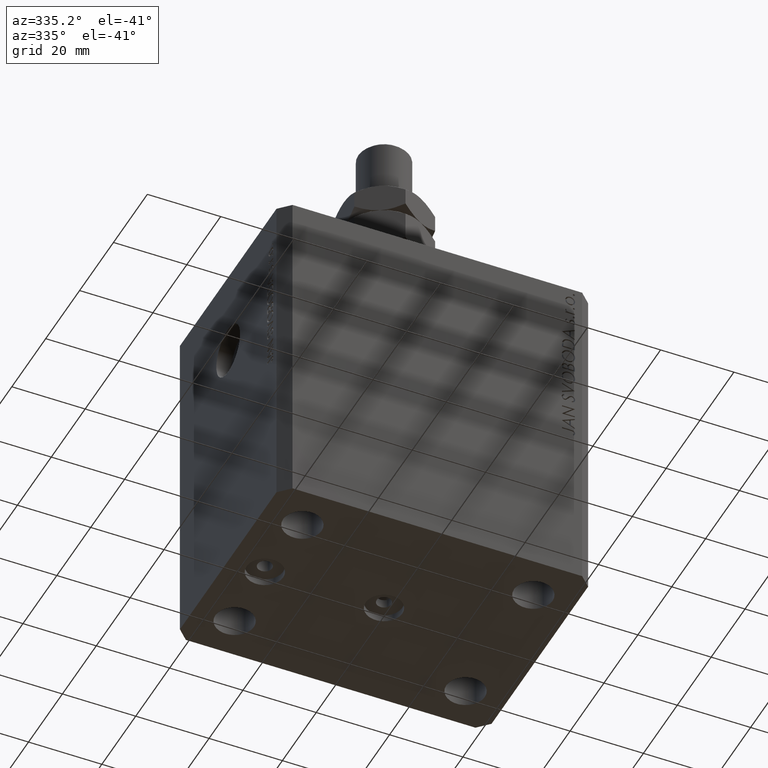
[diagram: clean part render]
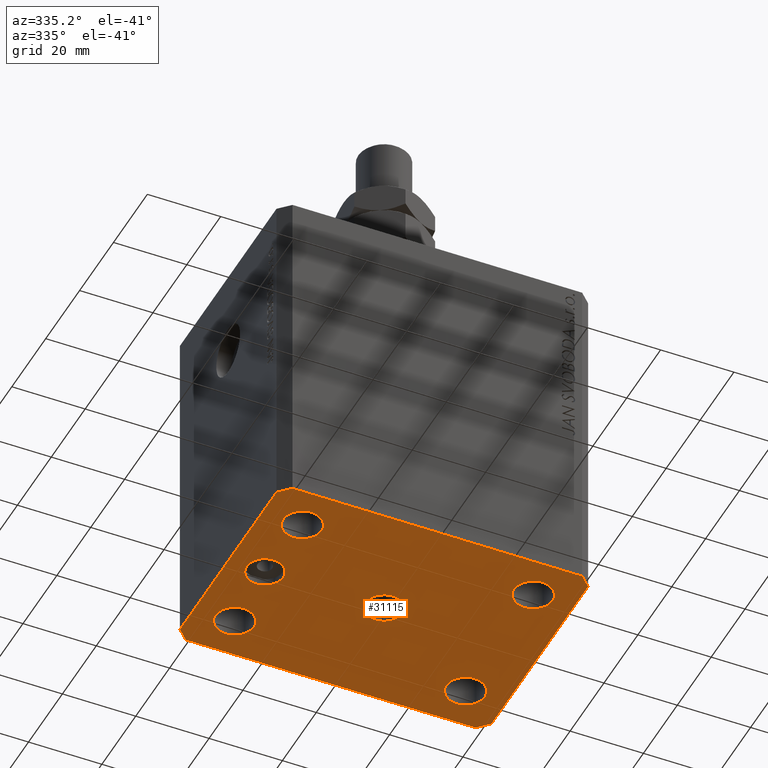
[diagram: same view with one face highlighted and labeled with its STEP entity id]
A machine part, auxiliary view. The second image highlights one B-rep face of the part: STEP entity #31115.
In plain terms, the highlighted planar face has unit normal (0, 0, 1).
Its self-contained STEP definition (entity closure, byte-faithful):
#225 = CARTESIAN_POINT ( 'NONE',  ( -42.50000000000000000, -28.50000000000000000, -93.00000000000000000 ) ) ;
#284 = CARTESIAN_POINT ( 'NONE',  ( 39.50000000000056843, 31.49999999999999289, -93.00000000000000000 ) ) ;
#984 = CARTESIAN_POINT ( 'NONE',  ( -32.50000000000000000, 0.000000000000000000, -93.00000000000000000 ) ) ;
#1146 = CARTESIAN_POINT ( 'NONE',  ( 31.49999999999999289, -20.00000000000000355, -93.00000000000000000 ) ) ;
#1160 = DIRECTION ( 'NONE',  ( 0.7071067811865471286, -0.7071067811865479058, 0.000000000000000000 ) ) ;
#1168 = CARTESIAN_POINT ( 'NONE',  ( -31.50000000000000000, 19.99999999999999645, -93.00000000000000000 ) ) ;
#1180 = DIRECTION ( 'NONE',  ( 0.000000000000000000, 0.000000000000000000, -1.000000000000000000 ) ) ;
#1465 = LINE ( 'NONE', #15693, #7337 ) ;
#1476 = EDGE_CURVE ( 'NONE', #35336, #13706, #45570, .T. ) ;
#1544 = AXIS2_PLACEMENT_3D ( 'NONE', #39375, #10981, #28447 ) ;
#1682 = DIRECTION ( 'NONE',  ( -0.000000000000000000, -0.000000000000000000, -1.000000000000000000 ) ) ;
#1774 = DIRECTION ( 'NONE',  ( -1.000000000000000000, 0.000000000000000000, 0.000000000000000000 ) ) ;
#2080 = AXIS2_PLACEMENT_3D ( 'NONE', #23643, #15994, #29956 ) ;
#2201 = VECTOR ( 'NONE', #1160, 1000.000000000000000 ) ;
#2460 = CIRCLE ( 'NONE', #23290, 5.250000000000000888 ) ;
#2848 = ORIENTED_EDGE ( 'NONE', *, *, #38782, .F. ) ;
#3006 = CARTESIAN_POINT ( 'NONE',  ( -5.000000000000000000, 0.000000000000000000, -93.00000000000000000 ) ) ;
#3090 = EDGE_LOOP ( 'NONE', ( #37847, #38159 ) ) ;
#3136 = EDGE_CURVE ( 'NONE', #26757, #42564, #32268, .T. ) ;
#3152 = ORIENTED_EDGE ( 'NONE', *, *, #20306, .F. ) ;
#3343 = DIRECTION ( 'NONE',  ( 0.000000000000000000, 0.000000000000000000, -1.000000000000000000 ) ) ;
#4350 = CARTESIAN_POINT ( 'NONE',  ( -39.50000000000000711, -31.50000000000000000, -93.00000000000000000 ) ) ;
#4352 = LINE ( 'NONE', #18561, #35210 ) ;
#4598 = LINE ( 'NONE', #19043, #41782 ) ;
#4907 = CARTESIAN_POINT ( 'NONE',  ( -39.50000000000000711, 31.50000000000000000, -93.00000000000000000 ) ) ;
#4919 = VERTEX_POINT ( 'NONE', #41088 ) ;
#4956 = CARTESIAN_POINT ( 'NONE',  ( 39.50000000000000711, -31.50000000000000000, -93.00000000000000000 ) ) ;
#5427 = DIRECTION ( 'NONE',  ( 0.000000000000000000, -1.000000000000000000, 0.000000000000000000 ) ) ;
#5458 = VERTEX_POINT ( 'NONE', #24422 ) ;
#5685 = EDGE_LOOP ( 'NONE', ( #42270, #44190 ) ) ;
#5707 = CIRCLE ( 'NONE', #7204, 5.249999999999997335 ) ;
#6748 = LINE ( 'NONE', #31897, #39235 ) ;
#6817 = CIRCLE ( 'NONE', #16510, 4.999999999999997335 ) ;
#7204 = AXIS2_PLACEMENT_3D ( 'NONE', #1146, #29338, #36998 ) ;
#7276 = VECTOR ( 'NONE', #19114, 1000.000000000000000 ) ;
#7337 = VECTOR ( 'NONE', #5427, 1000.000000000000000 ) ;
#7465 = EDGE_CURVE ( 'NONE', #13706, #35336, #40928, .T. ) ;
#7626 = CARTESIAN_POINT ( 'NONE',  ( 5.000000000000000000, 6.123233995736765296E-16, -93.00000000000000000 ) ) ;
#8433 = DIRECTION ( 'NONE',  ( -0.000000000000000000, -0.000000000000000000, -1.000000000000000000 ) ) ;
#8575 = EDGE_CURVE ( 'NONE', #22875, #14345, #41678, .T. ) ;
#8632 = CARTESIAN_POINT ( 'NONE',  ( 0.000000000000000000, 0.000000000000000000, -93.00000000000000000 ) ) ;
#8721 = DIRECTION ( 'NONE',  ( -0.7071067811865364705, 0.7071067811865584529, 0.000000000000000000 ) ) ;
#8942 = CARTESIAN_POINT ( 'NONE',  ( 36.75000000000000000, 19.99999999999999289, -93.00000000000000000 ) ) ;
#9278 = CARTESIAN_POINT ( 'NONE',  ( 39.50000000000056843, 31.49999999999999289, -93.00000000000000000 ) ) ;
#9969 = AXIS2_PLACEMENT_3D ( 'NONE', #19382, #1682, #15906 ) ;
#10226 = ORIENTED_EDGE ( 'NONE', *, *, #39585, .F. ) ;
#10434 = CARTESIAN_POINT ( 'NONE',  ( -39.50000000000000711, 31.50000000000000000, -93.00000000000000000 ) ) ;
#10960 = VERTEX_POINT ( 'NONE', #29015 ) ;
#10981 = DIRECTION ( 'NONE',  ( -0.000000000000000000, -0.000000000000000000, -1.000000000000000000 ) ) ;
#11778 = LINE ( 'NONE', #40613, #35241 ) ;
#12069 = CIRCLE ( 'NONE', #24704, 4.999999999999997335 ) ;
#12222 = FACE_OUTER_BOUND ( 'NONE', #16751, .T. ) ;
#12491 = CARTESIAN_POINT ( 'NONE',  ( -42.50000000000000000, 28.50000000000000000, -93.00000000000000000 ) ) ;
#12802 = DIRECTION ( 'NONE',  ( 1.000000000000000000, 0.000000000000000000, 0.000000000000000000 ) ) ;
#13520 = DIRECTION ( 'NONE',  ( 8.886653596232072440E-15, 1.000000000000000000, 0.000000000000000000 ) ) ;
#13706 = VERTEX_POINT ( 'NONE', #7626 ) ;
#13763 = VERTEX_POINT ( 'NONE', #26005 ) ;
#14345 = VERTEX_POINT ( 'NONE', #8942 ) ;
#14348 = ORIENTED_EDGE ( 'NONE', *, *, #15268, .F. ) ;
#14418 = ORIENTED_EDGE ( 'NONE', *, *, #43476, .F. ) ;
#14810 = ORIENTED_EDGE ( 'NONE', *, *, #40103, .F. ) ;
#15071 = CARTESIAN_POINT ( 'NONE',  ( 26.24999999999999645, -20.00000000000000355, -93.00000000000000000 ) ) ;
#15268 = EDGE_CURVE ( 'NONE', #14345, #22875, #18543, .T. ) ;
#15501 = CARTESIAN_POINT ( 'NONE',  ( 26.25000000000000355, 19.99999999999999289, -93.00000000000000000 ) ) ;
#15669 = CARTESIAN_POINT ( 'NONE',  ( 42.50000000000000711, -28.50000000000000355, -93.00000000000000000 ) ) ;
#15693 = CARTESIAN_POINT ( 'NONE',  ( -42.50000000000000000, 28.50000000000000000, -93.00000000000000000 ) ) ;
#15715 = FACE_BOUND ( 'NONE', #19208, .T. ) ;
#15906 = DIRECTION ( 'NONE',  ( 1.000000000000000000, 0.000000000000000000, 0.000000000000000000 ) ) ;
#15917 = VERTEX_POINT ( 'NONE', #284 ) ;
#15961 = CARTESIAN_POINT ( 'NONE',  ( -26.25000000000000000, 19.99999999999999645, -93.00000000000000000 ) ) ;
#15994 = DIRECTION ( 'NONE',  ( -0.000000000000000000, -0.000000000000000000, -1.000000000000000000 ) ) ;
#16170 = FACE_BOUND ( 'NONE', #5685, .T. ) ;
#16367 = EDGE_CURVE ( 'NONE', #5458, #29799, #18635, .T. ) ;
#16391 = FACE_BOUND ( 'NONE', #16467, .T. ) ;
#16467 = EDGE_LOOP ( 'NONE', ( #14348, #33168 ) ) ;
#16510 = AXIS2_PLACEMENT_3D ( 'NONE', #41597, #3343, #40920 ) ;
#16751 = EDGE_LOOP ( 'NONE', ( #40161, #17598, #40663, #14418, #14810, #28198, #17892, #3152 ) ) ;
#16977 = CIRCLE ( 'NONE', #2080, 5.250000000000000888 ) ;
#17138 = AXIS2_PLACEMENT_3D ( 'NONE', #19879, #30351, #27097 ) ;
#17598 = ORIENTED_EDGE ( 'NONE', *, *, #44929, .F. ) ;
#17892 = ORIENTED_EDGE ( 'NONE', *, *, #26803, .F. ) ;
#18495 = CARTESIAN_POINT ( 'NONE',  ( -26.24999999999999289, -20.00000000000000355, -93.00000000000000000 ) ) ;
#18543 = CIRCLE ( 'NONE', #28202, 5.249999999999997335 ) ;
#18561 = CARTESIAN_POINT ( 'NONE',  ( 39.50000000000000711, -31.50000000000000000, -93.00000000000000000 ) ) ;
#18635 = LINE ( 'NONE', #225, #2201 ) ;
#18959 = DIRECTION ( 'NONE',  ( -0.000000000000000000, -0.000000000000000000, -1.000000000000000000 ) ) ;
#19043 = CARTESIAN_POINT ( 'NONE',  ( -39.50000000000000711, -31.50000000000000000, -93.00000000000000000 ) ) ;
#19114 = DIRECTION ( 'NONE',  ( -0.7071067811865471286, -0.7071067811865479058, 0.000000000000000000 ) ) ;
#19165 = VERTEX_POINT ( 'NONE', #15669 ) ;
#19208 = EDGE_LOOP ( 'NONE', ( #10226, #2848 ) ) ;
#19382 = CARTESIAN_POINT ( 'NONE',  ( 31.49999999999999289, -20.00000000000000355, -93.00000000000000000 ) ) ;
#19426 = EDGE_LOOP ( 'NONE', ( #24125, #36733 ) ) ;
#19727 = VERTEX_POINT ( 'NONE', #15961 ) ;
#19879 = CARTESIAN_POINT ( 'NONE',  ( 0.000000000000000000, 0.000000000000000000, -93.00000000000000000 ) ) ;
#20104 = AXIS2_PLACEMENT_3D ( 'NONE', #30639, #23204, #1774 ) ;
#20306 = EDGE_CURVE ( 'NONE', #22492, #25210, #29588, .T. ) ;
#20323 = CARTESIAN_POINT ( 'NONE',  ( -36.75000000000000000, 19.99999999999999645, -93.00000000000000000 ) ) ;
#20865 = EDGE_CURVE ( 'NONE', #42564, #26757, #5707, .T. ) ;
#21099 = ORIENTED_EDGE ( 'NONE', *, *, #20865, .F. ) ;
#22168 = VERTEX_POINT ( 'NONE', #36097 ) ;
#22492 = VERTEX_POINT ( 'NONE', #10434 ) ;
#22875 = VERTEX_POINT ( 'NONE', #15501 ) ;
#23204 = DIRECTION ( 'NONE',  ( 0.000000000000000000, 0.000000000000000000, -1.000000000000000000 ) ) ;
#23248 = EDGE_CURVE ( 'NONE', #19165, #4919, #6748, .T. ) ;
#23290 = AXIS2_PLACEMENT_3D ( 'NONE', #35143, #45605, #27707 ) ;
#23643 = CARTESIAN_POINT ( 'NONE',  ( -31.50000000000000000, 19.99999999999999645, -93.00000000000000000 ) ) ;
#24125 = ORIENTED_EDGE ( 'NONE', *, *, #1476, .F. ) ;
#24422 = CARTESIAN_POINT ( 'NONE',  ( -42.50000000000000000, -28.50000000000000000, -93.00000000000000000 ) ) ;
#24704 = AXIS2_PLACEMENT_3D ( 'NONE', #984, #43127, #36613 ) ;
#24747 = AXIS2_PLACEMENT_3D ( 'NONE', #8632, #1180, #40061 ) ;
#25187 = EDGE_CURVE ( 'NONE', #35060, #19727, #16977, .T. ) ;
#25210 = VERTEX_POINT ( 'NONE', #12491 ) ;
#26005 = CARTESIAN_POINT ( 'NONE',  ( -27.50000000000000355, 6.123233995736762338E-16, -93.00000000000000000 ) ) ;
#26610 = CARTESIAN_POINT ( 'NONE',  ( 36.74999999999999289, -20.00000000000000355, -93.00000000000000000 ) ) ;
#26757 = VERTEX_POINT ( 'NONE', #26610 ) ;
#26803 = EDGE_CURVE ( 'NONE', #25210, #5458, #1465, .T. ) ;
#26839 = DIRECTION ( 'NONE',  ( 1.000000000000000000, 0.000000000000000000, 0.000000000000000000 ) ) ;
#27097 = DIRECTION ( 'NONE',  ( 1.000000000000000000, 0.000000000000000000, -0.000000000000000000 ) ) ;
#27707 = DIRECTION ( 'NONE',  ( 1.000000000000000000, 0.000000000000000000, 0.000000000000000000 ) ) ;
#28198 = ORIENTED_EDGE ( 'NONE', *, *, #16367, .F. ) ;
#28202 = AXIS2_PLACEMENT_3D ( 'NONE', #37056, #8433, #44496 ) ;
#28447 = DIRECTION ( 'NONE',  ( 1.000000000000000000, 0.000000000000000000, 0.000000000000000000 ) ) ;
#28547 = EDGE_CURVE ( 'NONE', #15917, #22492, #30004, .T. ) ;
#29015 = CARTESIAN_POINT ( 'NONE',  ( -37.50000000000000000, 0.000000000000000000, -93.00000000000000000 ) ) ;
#29309 = ORIENTED_EDGE ( 'NONE', *, *, #3136, .F. ) ;
#29311 = AXIS2_PLACEMENT_3D ( 'NONE', #1168, #36797, #12802 ) ;
#29338 = DIRECTION ( 'NONE',  ( -0.000000000000000000, -0.000000000000000000, -1.000000000000000000 ) ) ;
#29510 = EDGE_LOOP ( 'NONE', ( #29309, #21099 ) ) ;
#29588 = LINE ( 'NONE', #4907, #7276 ) ;
#29799 = VERTEX_POINT ( 'NONE', #4350 ) ;
#29956 = DIRECTION ( 'NONE',  ( 1.000000000000000000, 0.000000000000000000, 0.000000000000000000 ) ) ;
#30004 = LINE ( 'NONE', #9278, #34189 ) ;
#30134 = FACE_BOUND ( 'NONE', #19426, .T. ) ;
#30351 = DIRECTION ( 'NONE',  ( 0.000000000000000000, 0.000000000000000000, 1.000000000000000000 ) ) ;
#30639 = CARTESIAN_POINT ( 'NONE',  ( 0.000000000000000000, 0.000000000000000000, -93.00000000000000000 ) ) ;
#30812 = FACE_BOUND ( 'NONE', #3090, .T. ) ;
#31115 = ADVANCED_FACE ( 'NONE', ( #30134, #15715, #30812, #34303, #16391, #16170, #12222 ), #33622, .F. ) ;
#31897 = CARTESIAN_POINT ( 'NONE',  ( 42.50000000000000711, -28.50000000000000355, -93.00000000000000000 ) ) ;
#32268 = CIRCLE ( 'NONE', #9969, 5.249999999999997335 ) ;
#32762 = DIRECTION ( 'NONE',  ( 0.7071067811865483499, 0.7071067811865466846, 0.000000000000000000 ) ) ;
#33168 = ORIENTED_EDGE ( 'NONE', *, *, #8575, .F. ) ;
#33622 = PLANE ( 'NONE',  #17138 ) ;
#34189 = VECTOR ( 'NONE', #37205, 1000.000000000000000 ) ;
#34303 = FACE_BOUND ( 'NONE', #29510, .T. ) ;
#35053 = EDGE_CURVE ( 'NONE', #22168, #35752, #35078, .T. ) ;
#35060 = VERTEX_POINT ( 'NONE', #20323 ) ;
#35078 = CIRCLE ( 'NONE', #43260, 5.250000000000000888 ) ;
#35143 = CARTESIAN_POINT ( 'NONE',  ( -31.49999999999999289, -20.00000000000000355, -93.00000000000000000 ) ) ;
#35210 = VECTOR ( 'NONE', #32762, 1000.000000000000000 ) ;
#35241 = VECTOR ( 'NONE', #8721, 1000.000000000000114 ) ;
#35336 = VERTEX_POINT ( 'NONE', #3006 ) ;
#35752 = VERTEX_POINT ( 'NONE', #18495 ) ;
#36097 = CARTESIAN_POINT ( 'NONE',  ( -36.74999999999999289, -20.00000000000000355, -93.00000000000000000 ) ) ;
#36613 = DIRECTION ( 'NONE',  ( -1.000000000000000000, 0.000000000000000000, 0.000000000000000000 ) ) ;
#36729 = DIRECTION ( 'NONE',  ( 1.000000000000000000, 0.000000000000000000, 0.000000000000000000 ) ) ;
#36733 = ORIENTED_EDGE ( 'NONE', *, *, #7465, .F. ) ;
#36797 = DIRECTION ( 'NONE',  ( -0.000000000000000000, -0.000000000000000000, -1.000000000000000000 ) ) ;
#36998 = DIRECTION ( 'NONE',  ( 1.000000000000000000, 0.000000000000000000, 0.000000000000000000 ) ) ;
#37056 = CARTESIAN_POINT ( 'NONE',  ( 31.50000000000000000, 19.99999999999999289, -93.00000000000000000 ) ) ;
#37088 = VERTEX_POINT ( 'NONE', #4956 ) ;
#37205 = DIRECTION ( 'NONE',  ( -1.000000000000000000, 8.783410004945795812E-17, 0.000000000000000000 ) ) ;
#37847 = ORIENTED_EDGE ( 'NONE', *, *, #42285, .F. ) ;
#38159 = ORIENTED_EDGE ( 'NONE', *, *, #35053, .F. ) ;
#38188 = CIRCLE ( 'NONE', #29311, 5.250000000000000888 ) ;
#38782 = EDGE_CURVE ( 'NONE', #13763, #10960, #6817, .T. ) ;
#39235 = VECTOR ( 'NONE', #13520, 1000.000000000000000 ) ;
#39375 = CARTESIAN_POINT ( 'NONE',  ( 31.50000000000000000, 19.99999999999999289, -93.00000000000000000 ) ) ;
#39585 = EDGE_CURVE ( 'NONE', #10960, #13763, #12069, .T. ) ;
#40061 = DIRECTION ( 'NONE',  ( -1.000000000000000000, 0.000000000000000000, 0.000000000000000000 ) ) ;
#40103 = EDGE_CURVE ( 'NONE', #29799, #37088, #4598, .T. ) ;
#40161 = ORIENTED_EDGE ( 'NONE', *, *, #28547, .F. ) ;
#40613 = CARTESIAN_POINT ( 'NONE',  ( 42.50000000000051870, 28.49999999999995381, -93.00000000000000000 ) ) ;
#40663 = ORIENTED_EDGE ( 'NONE', *, *, #23248, .F. ) ;
#40920 = DIRECTION ( 'NONE',  ( -1.000000000000000000, 0.000000000000000000, 0.000000000000000000 ) ) ;
#40928 = CIRCLE ( 'NONE', #20104, 5.000000000000000000 ) ;
#41088 = CARTESIAN_POINT ( 'NONE',  ( 42.50000000000051870, 28.49999999999995381, -93.00000000000000000 ) ) ;
#41597 = CARTESIAN_POINT ( 'NONE',  ( -32.50000000000000000, 0.000000000000000000, -93.00000000000000000 ) ) ;
#41678 = CIRCLE ( 'NONE', #1544, 5.249999999999997335 ) ;
#41782 = VECTOR ( 'NONE', #36729, 1000.000000000000000 ) ;
#42270 = ORIENTED_EDGE ( 'NONE', *, *, #45140, .F. ) ;
#42285 = EDGE_CURVE ( 'NONE', #35752, #22168, #2460, .T. ) ;
#42564 = VERTEX_POINT ( 'NONE', #15071 ) ;
#43127 = DIRECTION ( 'NONE',  ( 0.000000000000000000, 0.000000000000000000, -1.000000000000000000 ) ) ;
#43260 = AXIS2_PLACEMENT_3D ( 'NONE', #44526, #18959, #26839 ) ;
#43476 = EDGE_CURVE ( 'NONE', #37088, #19165, #4352, .T. ) ;
#44190 = ORIENTED_EDGE ( 'NONE', *, *, #25187, .F. ) ;
#44496 = DIRECTION ( 'NONE',  ( 1.000000000000000000, 0.000000000000000000, 0.000000000000000000 ) ) ;
#44526 = CARTESIAN_POINT ( 'NONE',  ( -31.49999999999999289, -20.00000000000000355, -93.00000000000000000 ) ) ;
#44929 = EDGE_CURVE ( 'NONE', #4919, #15917, #11778, .T. ) ;
#45140 = EDGE_CURVE ( 'NONE', #19727, #35060, #38188, .T. ) ;
#45570 = CIRCLE ( 'NONE', #24747, 5.000000000000000000 ) ;
#45605 = DIRECTION ( 'NONE',  ( -0.000000000000000000, -0.000000000000000000, -1.000000000000000000 ) ) ;